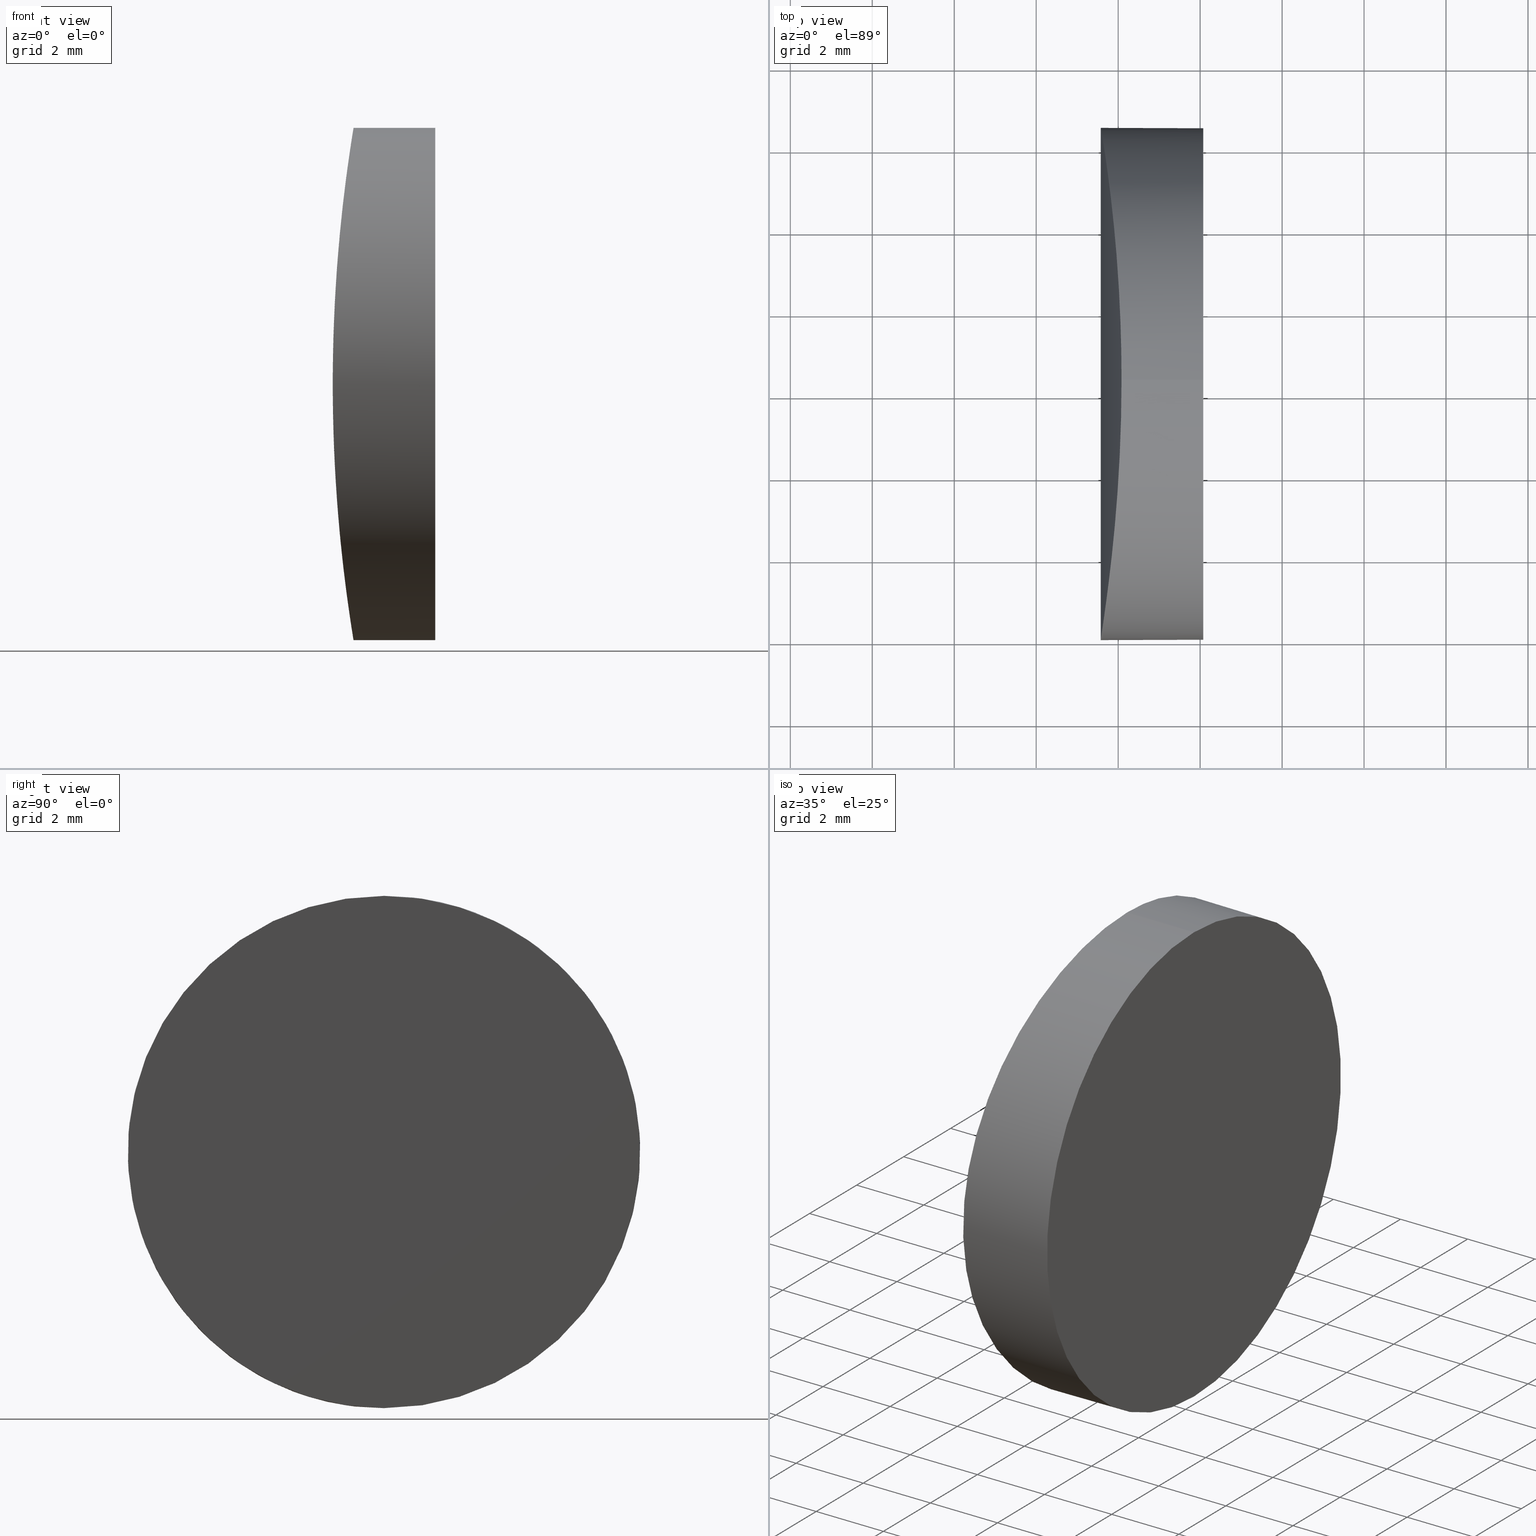
[diagram: canonical four-view strip — front | top / right | iso, engineering-drawing reading convention]
A machine part, canonical four-view strip (front | top / right | iso — engineering-drawing reading convention). The complete STEP part file that produces these views, byte-faithful:
ISO-10303-21;
HEADER;
FILE_DESCRIPTION (( 'STEP AP214' ),
    '1' );
FILE_NAME ('155020.STEP',
    '2019-06-17T03:35:46',
    ( 'user' ),
    ( '΢���й�' ),
    'SwSTEP 2.0',
    'SolidWorks 2016',
    '' );
FILE_SCHEMA (( 'AUTOMOTIVE_DESIGN' ));
ENDSEC;

DATA;
#1 = EDGE_LOOP ( 'NONE', ( #38, #18 ) ) ;
#2 = EDGE_CURVE ( 'NONE', #129, #9, #182, .T. ) ;
#3 = CARTESIAN_POINT ( 'NONE',  ( -44.62479566514873900, 6.250000000000000000, 1.604260927720519900E-014 ) ) ;
#4 =( GEOMETRIC_REPRESENTATION_CONTEXT ( 3 ) GLOBAL_UNCERTAINTY_ASSIGNED_CONTEXT ( ( #149 ) ) GLOBAL_UNIT_ASSIGNED_CONTEXT ( ( #34, #139, #122 ) ) REPRESENTATION_CONTEXT ( 'NONE', 'WORKASPACE' ) );
#5 = DIRECTION ( 'NONE',  ( 0.0000000000000000000, 0.0000000000000000000, -1.000000000000000000 ) ) ;
#6 = ORIENTED_EDGE ( 'NONE', *, *, #124, .T. ) ;
#7 = ADVANCED_FACE ( 'NONE', ( #53 ), #189, .T. ) ;
#8 = CARTESIAN_POINT ( 'NONE',  ( -34.33887513831124500, 11.94314011545350100, -2.586892138709590200 ) ) ;
#9 = VERTEX_POINT ( 'NONE', #207 ) ;
#10 = CARTESIAN_POINT ( 'NONE',  ( -33.91783970400197700, 5.836613760831456300, 6.250000000000014200 ) ) ;
#11 = DIRECTION ( 'NONE',  ( 1.000000000000000000, -0.0000000000000000000, -2.775557561562888400E-016 ) ) ;
#12 = CARTESIAN_POINT ( 'NONE',  ( -34.29970092198179500, 11.67459067736732700, 3.130935885867496700 ) ) ;
#13 = CARTESIAN_POINT ( 'NONE',  ( -34.06013828951582000, 2.942205915719372300, -5.306895794478472300 ) ) ;
#14 = AXIS2_PLACEMENT_3D ( 'NONE', #77, #193, #132 ) ;
#15 = CARTESIAN_POINT ( 'NONE',  ( -33.92453774470864400, 5.427943734810612300, -6.209383586059483500 ) ) ;
#16 =( NAMED_UNIT ( * ) SI_UNIT ( $, .STERADIAN. ) SOLID_ANGLE_UNIT ( ) );
#17 = CARTESIAN_POINT ( 'NONE',  ( -34.10546444526765700, 2.440625870071432500, 4.971679750671893500 ) ) ;
#18 = ORIENTED_EDGE ( 'NONE', *, *, #113, .T. ) ;
#19 = PRESENTATION_STYLE_ASSIGNMENT (( #56 ) ) ;
#20 = MANIFOLD_SOLID_BREP ( '�г�-����8', #165 ) ;
#21 = VERTEX_POINT ( 'NONE', #60 ) ;
#22 =( NAMED_UNIT ( * ) SI_UNIT ( $, .STERADIAN. ) SOLID_ANGLE_UNIT ( ) );
#23 = LINE ( 'NONE', #61, #204 ) ;
#24 = DIRECTION ( 'NONE',  ( 1.000000000000000000, -0.0000000000000000000, -2.775557561562888400E-016 ) ) ;
#25 = ADVANCED_FACE ( 'NONE', ( #57 ), #142, .T. ) ;
#26 = CARTESIAN_POINT ( 'NONE',  ( -34.42479653395775300, 12.50000539078613700, -0.4133095883163106500 ) ) ;
#27 = EDGE_LOOP ( 'NONE', ( #172, #90 ) ) ;
#28 = CARTESIAN_POINT ( 'NONE',  ( -33.91783970400197700, 6.250000000000000900, 6.250000000000013300 ) ) ;
#29 = CIRCLE ( 'NONE', #14, 6.250000000000000000 ) ;
#30 = CARTESIAN_POINT ( 'NONE',  ( -34.36250896445565000, 12.10161802954249500, 2.205210819069614500 ) ) ;
#31 = SURFACE_STYLE_FILL_AREA ( #69 ) ;
#32 = APPLICATION_CONTEXT ( 'automotive_design' ) ;
#33 = CARTESIAN_POINT ( 'NONE',  ( -34.41819697357497900, 0.04057904091132709400, -0.8195254650020330500 ) ) ;
#34 =( LENGTH_UNIT ( ) NAMED_UNIT ( * ) SI_UNIT ( .MILLI., .METRE. ) );
#35 = CARTESIAN_POINT ( 'NONE',  ( -33.91783970400198500, 6.250000000000000000, -6.249999999999987600 ) ) ;
#36 =( LENGTH_UNIT ( ) NAMED_UNIT ( * ) SI_UNIT ( .MILLI., .METRE. ) );
#37 = CARTESIAN_POINT ( 'NONE',  ( -34.33886043066469500, 0.5569597831928545500, 2.587111434371651700 ) ) ;
#38 = ORIENTED_EDGE ( 'NONE', *, *, #2, .T. ) ;
#39 = AXIS2_PLACEMENT_3D ( 'NONE', #140, #157, #67 ) ;
#40 = CARTESIAN_POINT ( 'NONE',  ( -34.39263695680787000, 12.29778234097179300, -1.629891383665313900 ) ) ;
#41 = UNCERTAINTY_MEASURE_WITH_UNIT (LENGTH_MEASURE( 1.000000000000000100E-005 ), #146, 'distance_accuracy_value', 'NONE');
#42 = CARTESIAN_POINT ( 'NONE',  ( -34.39262538215815800, 0.2022916024594726700, 1.630162603391949200 ) ) ;
#43 = CARTESIAN_POINT ( 'NONE',  ( -33.92453352462687400, 5.430268538045831800, 6.209392081015360900 ) ) ;
#44 = CARTESIAN_POINT ( 'NONE',  ( -33.91783970400197700, 6.250000000000000900, 6.250000000000013300 ) ) ;
#45 = ORIENTED_EDGE ( 'NONE', *, *, #97, .T. ) ;
#46 = CARTESIAN_POINT ( 'NONE',  ( -33.95040341654208800, 7.879937809581679900, 6.047769182465951400 ) ) ;
#47 = CARTESIAN_POINT ( 'NONE',  ( -34.39155209445634400, 12.29058739546358200, 1.617380309883011700 ) ) ;
#48 = CARTESIAN_POINT ( 'NONE',  ( -34.39934176425766300, 0.1598043337111437500, -1.418987105316862800 ) ) ;
#49 = CARTESIAN_POINT ( 'NONE',  ( -34.39156329784444200, 0.2093408077023332400, -1.617112881006344900 ) ) ;
#50 = CARTESIAN_POINT ( 'NONE',  ( -34.37377992169284400, 0.3227614462889359400, 2.023796695214545900 ) ) ;
#51 = EDGE_LOOP ( 'NONE', ( #45, #6, #177, #184 ) ) ;
#52 = PRODUCT_DEFINITION ( 'δ֪', '', #65, #197 ) ;
#53 = FACE_OUTER_BOUND ( 'NONE', #216, .T. ) ;
#54 = CARTESIAN_POINT ( 'NONE',  ( -34.04419681480035800, 9.380862807156797000, -5.424632771040741400 ) ) ;
#55 = CARTESIAN_POINT ( 'NONE',  ( -31.92479566514873900, 12.50000000000000000, -6.250000000000001800 ) ) ;
#56 = SURFACE_STYLE_USAGE ( .BOTH. , #167 ) ;
#57 = FACE_OUTER_BOUND ( 'NONE', #51, .T. ) ;
#58 = CARTESIAN_POINT ( 'NONE',  ( -44.62479566514873900, 6.250000000000000000, 1.604260927720519900E-014 ) ) ;
#59 = CARTESIAN_POINT ( 'NONE',  ( -34.00471225803260500, 3.663028143785209200, -5.693103796502518900 ) ) ;
#60 = CARTESIAN_POINT ( 'NONE',  ( -33.91783970400198500, 6.250000000000000000, -6.249999999999987600 ) ) ;
#61 = CARTESIAN_POINT ( 'NONE',  ( -44.62479566514873900, 6.250000000000000000, -6.249999999999984900 ) ) ;
#62 = DIRECTION ( 'NONE',  ( 0.0000000000000000000, 0.0000000000000000000, -1.000000000000000000 ) ) ;
#63 = CARTESIAN_POINT ( 'NONE',  ( -34.00470678257290300, 8.836890282464549900, 5.693140618233931200 ) ) ;
#64 = SURFACE_STYLE_FILL_AREA ( #73 ) ;
#65 = PRODUCT_DEFINITION_FORMATION_WITH_SPECIFIED_SOURCE ( '�κ�', '', #112, .NOT_KNOWN. ) ;
#66 = CARTESIAN_POINT ( 'NONE',  ( -34.41819044250195200, 12.45938037601769300, 0.8198262783336161000 ) ) ;
#67 = DIRECTION ( 'NONE',  ( 1.000000000000000000, 0.0000000000000000000, 0.0000000000000000000 ) ) ;
#68 = CARTESIAN_POINT ( 'NONE',  ( -33.97008274007399800, 4.239972935442253300, 5.921520338618314000 ) ) ;
#69 = FILL_AREA_STYLE ('',( #179 ) ) ;
#70 = LINE ( 'NONE', #209, #147 ) ;
#71 = CARTESIAN_POINT ( 'NONE',  ( -33.98084874828136000, 8.455145599016594500, -5.851642504039013200 ) ) ;
#72 = PLANE ( 'NONE',  #133 ) ;
#73 = FILL_AREA_STYLE ('',( #188 ) ) ;
#74 = PRODUCT_RELATED_PRODUCT_CATEGORY ( 'part', '', ( #112 ) ) ;
#75 = CARTESIAN_POINT ( 'NONE',  ( -34.28385196213451300, 11.55693783500156800, -3.307726864407156200 ) ) ;
#76 = CARTESIAN_POINT ( 'NONE',  ( -34.32610487912405300, 11.85596877904375300, -2.770794287642725600 ) ) ;
#77 = CARTESIAN_POINT ( 'NONE',  ( -31.92479566514873200, 6.250000000000000000, 1.251765117402033000E-014 ) ) ;
#78 = CARTESIAN_POINT ( 'NONE',  ( -34.01758474857054200, 9.020783752978980300, 5.605973642456868700 ) ) ;
#79 = CARTESIAN_POINT ( 'NONE',  ( -34.13932785010506200, 2.116637413996713700, -4.705662168027766200 ) ) ;
#80 = CARTESIAN_POINT ( 'NONE',  ( -34.42479295357956900, 1.682474440728940500E-005, 0.4136303794407123500 ) ) ;
#81 = SURFACE_STYLE_USAGE ( .BOTH. , #159 ) ;
#82 = CARTESIAN_POINT ( 'NONE',  ( -34.04418906712428600, 3.119233019300538900, 5.424686987981147000 ) ) ;
#83 = B_SPLINE_CURVE_WITH_KNOTS ( 'NONE', 3,
 ( #127, #166, #106, #205, #85, #186, #71, #164, #54, #144, #89, #131, #168, #75, #190, #76, #8, #151, #40, #178, #26, #191, #66, #176, #47, #156, #30, #135, #12, #119, #211, #110, #194, #98, #134, #78, #63, #175, #46, #154, #118, #28 ),
 .UNSPECIFIED., .F., .F.,
 ( 4, 2, 2, 2, 2, 2, 2, 2, 2, 2, 2, 2, 2, 2, 2, 2, 2, 2, 2, 2, 4 ),
 ( -0.009779290415296279500, -0.008556869070420662300, -0.007945658397982852800, -0.007334447725545043300, -0.006112026380669419200, -0.004889605035793794100, -0.003667183690918169100, -0.003055973018480358800, -0.002444762346042548400, -0.001222341001166926000, 8.034370869297591300E-008, 0.001222501688584315400, 0.001833712361022124900, 0.002444923033459936100, 0.003667344378335560300, 0.004889765723211182700, 0.006112187068086808600, 0.006723397740524619800, 0.007334608412962427500, 0.008557029757838046500, 0.009779451102713662000 ),
 .UNSPECIFIED. ) ;
#84 = ORIENTED_EDGE ( 'NONE', *, *, #185, .T. ) ;
#85 = CARTESIAN_POINT ( 'NONE',  ( -33.95149393115937600, 7.867316892044191200, -6.040604352792063200 ) ) ;
#86 = ORIENTED_EDGE ( 'NONE', *, *, #113, .F. ) ;
#87 = CARTESIAN_POINT ( 'NONE',  ( -33.91783970400197700, 6.250000000000000900, 6.250000000000013300 ) ) ;
#88 = DIRECTION ( 'NONE',  ( 1.000000000000000000, 0.0000000000000000000, -5.551115123125781700E-016 ) ) ;
#89 = CARTESIAN_POINT ( 'NONE',  ( -34.13899910354597000, 10.38031230980023200, -4.708338826597777200 ) ) ;
#90 = ORIENTED_EDGE ( 'NONE', *, *, #201, .F. ) ;
#91 = AXIS2_PLACEMENT_3D ( 'NONE', #3, #107, #206 ) ;
#92 = ADVANCED_FACE ( 'NONE', ( #136 ), #72, .T. ) ;
#93 = CARTESIAN_POINT ( 'NONE',  ( -33.95149170327917400, 4.632736637854213400, 6.040618440059416700 ) ) ;
#94 = DIRECTION ( 'NONE',  ( 1.000000000000000000, -0.0000000000000000000, -2.775557561562888400E-016 ) ) ;
#95 = VERTEX_POINT ( 'NONE', #87 ) ;
#96 = CARTESIAN_POINT ( 'NONE',  ( 4.355204334851265500, 12.50000000000000000, 4.286263797015675000E-017 ) ) ;
#97 = EDGE_CURVE ( 'NONE', #21, #95, #83, .T. ) ;
#98 = CARTESIAN_POINT ( 'NONE',  ( -34.06012961127033400, 9.557693146961172600, 5.306958462291570200 ) ) ;
#99 = CARTESIAN_POINT ( 'NONE',  ( -34.23874528118430800, 1.278337435014556900, -3.809399590212295900 ) ) ;
#100 = ORIENTED_EDGE ( 'NONE', *, *, #201, .T. ) ;
#101 = UNCERTAINTY_MEASURE_WITH_UNIT (LENGTH_MEASURE( 1.000000000000000100E-005 ), #36, 'distance_accuracy_value', 'NONE');
#102 = CARTESIAN_POINT ( 'NONE',  ( -34.23775540468372500, 1.285937825029126700, 3.819575685293831800 ) ) ;
#103 = B_SPLINE_CURVE_WITH_KNOTS ( 'NONE', 3,
 ( #44, #10, #43, #192, #93, #68, #180, #161, #82, #17, #215, #200, #102, #121, #213, #141, #37, #50, #42, #138, #80, #158, #33, #48, #49, #109, #108, #195, #173, #99, #111, #79, #208, #13, #212, #171, #59, #169, #196, #15, #125, #35 ),
 .UNSPECIFIED., .F., .F.,
 ( 4, 2, 2, 2, 2, 2, 2, 2, 2, 2, 2, 2, 2, 2, 2, 2, 2, 2, 2, 2, 4 ),
 ( 0.009779451102713662000, 0.01100187244794961100, 0.01161308312056758500, 0.01222429379318556100, 0.01344671513842150800, 0.01466913648365745500, 0.01589155782889340200, 0.01650276850151137500, 0.01711397917412935100, 0.01833640051936530000, 0.01955882186460124900, 0.02078124320983719400, 0.02139245388245517000, 0.02200366455507314600, 0.02322608590030909500, 0.02444850724554504400, 0.02567092859078099600, 0.02628213926339897200, 0.02689334993601694800, 0.02811577128125289700, 0.02933819262648884600 ),
 .UNSPECIFIED. ) ;
#104 = COLOUR_RGB ( '',1.000000000000000000, 1.000000000000000000, 1.000000000000000000 ) ;
#105 = PRODUCT_DEFINITION_SHAPE ( 'NONE', 'NONE',  #52 ) ;
#106 = CARTESIAN_POINT ( 'NONE',  ( -33.92453397767724300, 7.069758974721899000, -6.209389358244795400 ) ) ;
#107 = DIRECTION ( 'NONE',  ( 1.000000000000000000, -0.0000000000000000000, -2.775557561562888400E-016 ) ) ;
#108 = CARTESIAN_POINT ( 'NONE',  ( -34.36252272843113800, 0.3982909603401236800, -2.204970036206492800 ) ) ;
#109 = CARTESIAN_POINT ( 'NONE',  ( -34.37317461155446800, 0.3284379331313809200, -2.009905529031047700 ) ) ;
#110 = CARTESIAN_POINT ( 'NONE',  ( -34.13931559908232300, 10.38324832292155100, 4.705761293899165300 ) ) ;
#111 = CARTESIAN_POINT ( 'NONE',  ( -34.20531093850078700, 1.541601516953979800, -4.130245323443815200 ) ) ;
#112 = PRODUCT ( '155020', '155020', '', ( #137 ) ) ;
#113 = EDGE_CURVE ( 'NONE', #9, #129, #29, .T. ) ;
#114 = CYLINDRICAL_SURFACE ( 'NONE', #174, 38.78000000000000100 ) ;
#115 = ADVANCED_BREP_SHAPE_REPRESENTATION ( '155020', ( #20, #39 ), #162 ) ;
#116 = CARTESIAN_POINT ( 'NONE',  ( -31.92479566514873200, 6.250000000000000000, -6.249999999999988500 ) ) ;
#117 = DIRECTION ( 'NONE',  ( 0.0000000000000000000, 0.0000000000000000000, -1.000000000000000000 ) ) ;
#118 = CARTESIAN_POINT ( 'NONE',  ( -33.91783970400197700, 6.663386239046694500, 6.250000000000015100 ) ) ;
#119 = CARTESIAN_POINT ( 'NONE',  ( -34.23872990032098300, 11.22154335705132200, 3.809553804233813500 ) ) ;
#120 = APPLICATION_PROTOCOL_DEFINITION ( 'draft international standard', 'automotive_design', 1998, #32 ) ;
#121 = CARTESIAN_POINT ( 'NONE',  ( -34.28383619642197300, 0.9431769266087302000, 3.307910487133580300 ) ) ;
#122 =( NAMED_UNIT ( * ) SI_UNIT ( $, .STERADIAN. ) SOLID_ANGLE_UNIT ( ) );
#123 = ORIENTED_EDGE ( 'NONE', *, *, #124, .F. ) ;
#124 = EDGE_CURVE ( 'NONE', #95, #9, #70, .T. ) ;
#125 = CARTESIAN_POINT ( 'NONE',  ( -33.91783970400198500, 5.836599768218159800, -6.249999999999987600 ) ) ;
#126 =( NAMED_UNIT ( * ) PLANE_ANGLE_UNIT ( ) SI_UNIT ( $, .RADIAN. ) );
#127 = CARTESIAN_POINT ( 'NONE',  ( -33.91783970400198500, 6.250000000000000000, -6.249999999999987600 ) ) ;
#128 =( NAMED_UNIT ( * ) PLANE_ANGLE_UNIT ( ) SI_UNIT ( $, .RADIAN. ) );
#129 = VERTEX_POINT ( 'NONE', #116 ) ;
#130 =( GEOMETRIC_REPRESENTATION_CONTEXT ( 3 ) GLOBAL_UNCERTAINTY_ASSIGNED_CONTEXT ( ( #41 ) ) GLOBAL_UNIT_ASSIGNED_CONTEXT ( ( #146, #128, #22 ) ) REPRESENTATION_CONTEXT ( 'NONE', 'WORKASPACE' ) );
#131 = CARTESIAN_POINT ( 'NONE',  ( -34.20498107702067600, 10.95570721759375700, -4.133310279282401500 ) ) ;
#132 = DIRECTION ( 'NONE',  ( 0.0000000000000000000, 0.0000000000000000000, -1.000000000000000000 ) ) ;
#133 = AXIS2_PLACEMENT_3D ( 'NONE', #55, #88, #145 ) ;
#134 = CARTESIAN_POINT ( 'NONE',  ( -34.04525434568406400, 9.380739120478951400, 5.413192740444040800 ) ) ;
#135 = CARTESIAN_POINT ( 'NONE',  ( -34.32742578823111000, 11.86640587783313400, 2.772370519298435400 ) ) ;
#136 = FACE_OUTER_BOUND ( 'NONE', #1, .T. ) ;
#137 = PRODUCT_CONTEXT ( 'NONE', #198, 'mechanical' ) ;
#138 = CARTESIAN_POINT ( 'NONE',  ( -34.41818367756690100, 0.04064519898760018300, 0.8222651216755272300 ) ) ;
#139 =( NAMED_UNIT ( * ) PLANE_ANGLE_UNIT ( ) SI_UNIT ( $, .RADIAN. ) );
#140 = CARTESIAN_POINT ( 'NONE',  ( 0.0000000000000000000, 0.0000000000000000000, 0.0000000000000000000 ) ) ;
#141 = CARTESIAN_POINT ( 'NONE',  ( -34.32608979047029900, 0.6441352722756857900, 2.771004338455434400 ) ) ;
#142 = CYLINDRICAL_SURFACE ( 'NONE', #91, 6.250000000000000000 ) ;
#143 = MECHANICAL_DESIGN_GEOMETRIC_PRESENTATION_REPRESENTATION (  '', ( #170 ), #130 ) ;
#144 = CARTESIAN_POINT ( 'NONE',  ( -34.10547536445857000, 10.05948503058821200, -4.971595963029500400 ) ) ;
#145 = DIRECTION ( 'NONE',  ( -5.551115123125781700E-016, 0.0000000000000000000, -1.000000000000000000 ) ) ;
#146 =( LENGTH_UNIT ( ) NAMED_UNIT ( * ) SI_UNIT ( .MILLI., .METRE. ) );
#147 = VECTOR ( 'NONE', #11, 1000.000000000000000 ) ;
#148 = CARTESIAN_POINT ( 'NONE',  ( -31.92479566514873200, 6.250000000000000000, 1.251765117402033000E-014 ) ) ;
#149 = UNCERTAINTY_MEASURE_WITH_UNIT (LENGTH_MEASURE( 1.000000000000000100E-005 ), #34, 'distance_accuracy_value', 'NONE');
#150 = ADVANCED_FACE ( 'NONE', ( #163 ), #114, .T. ) ;
#151 = CARTESIAN_POINT ( 'NONE',  ( -34.37379305568849500, 12.17732412404727600, -2.023548856465051200 ) ) ;
#152 = DIRECTION ( 'NONE',  ( 1.000000000000000000, 0.0000000000000000000, -4.995092817331920300E-016 ) ) ;
#153 = DIRECTION ( 'NONE',  ( -0.0000000000000000000, -1.000000000000000000, -0.0000000000000000000 ) ) ;
#154 = CARTESIAN_POINT ( 'NONE',  ( -33.92453729118579300, 7.072028597830792400, 6.209386308793901900 ) ) ;
#155 = COLOUR_RGB ( '',1.000000000000000000, 1.000000000000000000, 1.000000000000000000 ) ;
#156 = CARTESIAN_POINT ( 'NONE',  ( -34.37316153897030100, 12.17147663566519500, 2.010156611386781500 ) ) ;
#157 = DIRECTION ( 'NONE',  ( 0.0000000000000000000, 0.0000000000000000000, 1.000000000000000000 ) ) ;
#158 = CARTESIAN_POINT ( 'NONE',  ( -34.42479837505030800, -1.681439729278429900E-005, -0.4131217756610551200 ) ) ;
#159 = SURFACE_SIDE_STYLE ('',( #31 ) ) ;
#160 = AXIS2_PLACEMENT_3D ( 'NONE', #58, #24, #117 ) ;
#161 = CARTESIAN_POINT ( 'NONE',  ( -34.01625208174645800, 3.477787089898518100, 5.616482278959937300 ) ) ;
#162 =( GEOMETRIC_REPRESENTATION_CONTEXT ( 3 ) GLOBAL_UNCERTAINTY_ASSIGNED_CONTEXT ( ( #101 ) ) GLOBAL_UNIT_ASSIGNED_CONTEXT ( ( #36, #126, #16 ) ) REPRESENTATION_CONTEXT ( 'NONE', 'WORKASPACE' ) );
#163 = FACE_OUTER_BOUND ( 'NONE', #27, .T. ) ;
#164 = CARTESIAN_POINT ( 'NONE',  ( -34.01625826213766100, 9.022299823706884300, -5.616440342354576600 ) ) ;
#165 = CLOSED_SHELL ( 'NONE', ( #25, #150, #92, #7 ) ) ;
#166 = CARTESIAN_POINT ( 'NONE',  ( -33.91783970400197000, 6.663400231659985600, -6.249999999999987600 ) ) ;
#167 = SURFACE_SIDE_STYLE ('',( #64 ) ) ;
#168 = CARTESIAN_POINT ( 'NONE',  ( -34.23777066565097000, 11.21418070190104300, -3.819423351140964300 ) ) ;
#169 = CARTESIAN_POINT ( 'NONE',  ( -33.96946822497858400, 4.226360628585808000, -5.927292854656163200 ) ) ;
#170 = STYLED_ITEM ( 'NONE', ( #19 ), #20 ) ;
#171 = CARTESIAN_POINT ( 'NONE',  ( -34.01759098099504500, 3.479129629603453700, -5.605931093331458100 ) ) ;
#172 = ORIENTED_EDGE ( 'NONE', *, *, #97, .F. ) ;
#173 = CARTESIAN_POINT ( 'NONE',  ( -34.29971649781960300, 0.8252985082091594000, -3.130745537879033400 ) ) ;
#174 = AXIS2_PLACEMENT_3D ( 'NONE', #96, #153, #62 ) ;
#175 = CARTESIAN_POINT ( 'NONE',  ( -33.96946486084087300, 8.273573706724796800, 5.927314331417707500 ) ) ;
#176 = CARTESIAN_POINT ( 'NONE',  ( -34.39933162588597800, 12.34013120182772000, 1.419262797971000200 ) ) ;
#177 = ORIENTED_EDGE ( 'NONE', *, *, #2, .F. ) ;
#178 = CARTESIAN_POINT ( 'NONE',  ( -34.41819026813117700, 12.45939574505865700, -0.8219620718525402200 ) ) ;
#179 = FILL_AREA_STYLE_COLOUR ( '', #155 ) ;
#180 = CARTESIAN_POINT ( 'NONE',  ( -33.98084464746275300, 4.044926124503216000, 5.851669300789542800 ) ) ;
#181 = SHAPE_DEFINITION_REPRESENTATION ( #105, #115 ) ;
#182 = CIRCLE ( 'NONE', #199, 6.250000000000000000 ) ;
#183 = PRESENTATION_LAYER_ASSIGNMENT (  '', '', ( #170 ) ) ;
#184 = ORIENTED_EDGE ( 'NONE', *, *, #185, .F. ) ;
#185 = EDGE_CURVE ( 'NONE', #21, #129, #23, .T. ) ;
#186 = CARTESIAN_POINT ( 'NONE',  ( -33.97008617578518400, 8.260093184603334700, -5.921498143668809000 ) ) ;
#187 = STYLED_ITEM ( 'NONE', ( #202 ), #115 ) ;
#188 = FILL_AREA_STYLE_COLOUR ( '', #104 ) ;
#189 = CYLINDRICAL_SURFACE ( 'NONE', #160, 6.250000000000000000 ) ;
#190 = CARTESIAN_POINT ( 'NONE',  ( -34.29863493179951200, 11.66317776324727100, -3.130765631524028900 ) ) ;
#191 = CARTESIAN_POINT ( 'NONE',  ( -34.42479479616839900, 12.49999460815083000, 0.4134726094138640500 ) ) ;
#192 = CARTESIAN_POINT ( 'NONE',  ( -33.94362083761269800, 4.830848189657934300, 6.090156858454173000 ) ) ;
#193 = DIRECTION ( 'NONE',  ( 1.000000000000000000, 0.0000000000000000000, -4.995092817331920300E-016 ) ) ;
#194 = CARTESIAN_POINT ( 'NONE',  ( -34.10643967390706900, 10.06936734369728000, 4.964222133795610500 ) ) ;
#195 = CARTESIAN_POINT ( 'NONE',  ( -34.32744100983845900, 0.6334895339658714900, -2.772160956104734900 ) ) ;
#196 = CARTESIAN_POINT ( 'NONE',  ( -33.95040558969409300, 4.620007816909993200, -6.047755493158392800 ) ) ;
#197 = PRODUCT_DEFINITION_CONTEXT ( 'detailed design', #32, 'design' ) ;
#198 = APPLICATION_CONTEXT ( 'automotive_design' ) ;
#199 = AXIS2_PLACEMENT_3D ( 'NONE', #148, #152, #5 ) ;
#200 = CARTESIAN_POINT ( 'NONE',  ( -34.20496661580054400, 1.544411383396088900, 4.133444000635442700 ) ) ;
#201 = EDGE_CURVE ( 'NONE', #95, #21, #103, .T. ) ;
#202 = PRESENTATION_STYLE_ASSIGNMENT (( #81 ) ) ;
#203 = PRESENTATION_LAYER_ASSIGNMENT (  '', '', ( #187 ) ) ;
#204 = VECTOR ( 'NONE', #94, 1000.000000000000000 ) ;
#205 = CARTESIAN_POINT ( 'NONE',  ( -33.94362254934760200, 7.669198922307012700, -6.090146111847620800 ) ) ;
#206 = DIRECTION ( 'NONE',  ( 0.0000000000000000000, 0.0000000000000000000, -1.000000000000000000 ) ) ;
#207 = CARTESIAN_POINT ( 'NONE',  ( -31.92479566514873200, 6.250000000000000900, 6.250000000000012400 ) ) ;
#208 = CARTESIAN_POINT ( 'NONE',  ( -34.10645053353975000, 2.430522779074024700, -4.964138643173535000 ) ) ;
#209 = CARTESIAN_POINT ( 'NONE',  ( -44.62479566514873900, 6.250000000000000900, 6.250000000000016000 ) ) ;
#210 = MECHANICAL_DESIGN_GEOMETRIC_PRESENTATION_REPRESENTATION (  '', ( #187 ), #4 ) ;
#211 = CARTESIAN_POINT ( 'NONE',  ( -34.20529638885859900, 10.95827917801738700, 4.130379914238067900 ) ) ;
#212 = CARTESIAN_POINT ( 'NONE',  ( -34.04526216227124300, 3.119164735356723100, -5.413137406198735800 ) ) ;
#213 = CARTESIAN_POINT ( 'NONE',  ( -34.29861933677263200, 0.8369335333012606300, 3.130957651643356200 ) ) ;
#214 = APPLICATION_PROTOCOL_DEFINITION ( 'draft international standard', 'automotive_design', 1998, #198 ) ;
#215 = CARTESIAN_POINT ( 'NONE',  ( -34.13898676498507700, 2.119802799388215600, 4.708438660443611900 ) ) ;
#216 = EDGE_LOOP ( 'NONE', ( #123, #100, #84, #86 ) ) ;
ENDSEC;
END-ISO-10303-21;
